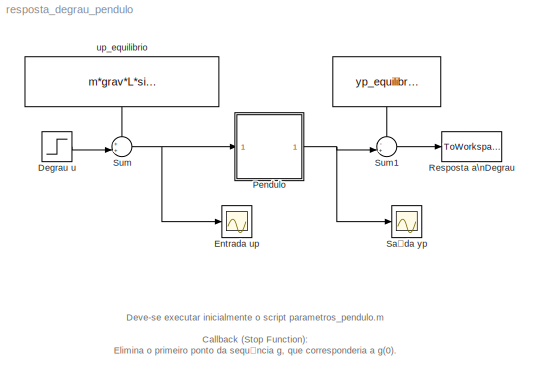
MODEL resposta_degrau_pendulo
KIND model
CONFIG StopFcn = disp('O primeiro ponto de g nao eh armazenado !')\ng = g(2:end);\nfigure,stem(g),title('g(n)'),xlabel('n')
BLOCK [Constant]  
  OutDataType = sfix(16)
  OutScaling = 2^0
  SID = 18
  Value = yp_equilibrio
BLOCK [Step] Degrau u
  SID = 1
  SampleTime = 0
  Time = 0
BLOCK [Scope] Entrada up
  DataFormat = StructureWithTime
  Floating = off
  NumInputPorts = 1
  Ports = [1]
  SID = 2
  SaveName = ScopeData1
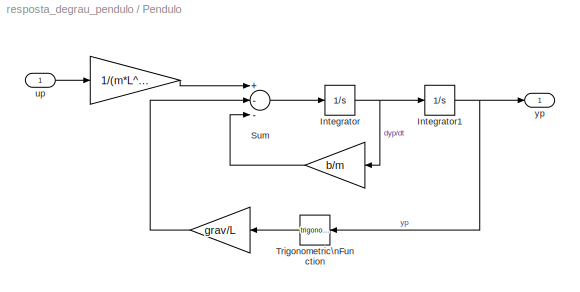
BLOCK [SubSystem] Pendulo
  FunctionWithSeparateData = off
  MaskCallbackString = ||||
  MaskEnableString = on,on,on,on,on
  MaskHideContents = off
  MaskIconFrame = on
  MaskIconOpaque = on
  MaskIconRotate = none
  MaskIconUnits = autoscale
  MaskPortRotate = default
  MaskPromptString = m (kg)|L (m)|grav (m/s^2)|b (Ns/(m*rad))|theta inicial (rad)
  MaskStyleString = edit,edit,edit,edit,edit
  MaskToolTipString = on,on,on,on,on
  MaskTunableValueString = on,on,on,on,on
  MaskValueString = m|L|grav|b|yp_equilibrio
  MaskVariables = m=@1;L=@2;grav=@3;b=@4;theta0=@5;
  MaskVisibilityString = on,on,on,on,on
  MinAlgLoopOccurrences = off
  Opaque = off
  Ports = [1, 1]
  PropExecContextOutsideSubsystem = off
  RTWSystemCode = Auto
  RequestExecContextInheritance = off
  SID = 3
BLOCK [Gain] Pendulo/ 
  Gain = b/m
  OutDataType = sfix(16)
  OutScaling = 2^0
  ParameterDataType = sfix(16)
  ParameterScaling = 2^0
  SID = 7
BLOCK [Gain] Pendulo/  
  Gain = grav/L
  OutDataType = sfix(16)
  OutScaling = 2^0
  ParameterDataType = sfix(16)
  ParameterScaling = 2^0
  SID = 6
BLOCK [Gain] Pendulo/   
  Gain = 1/(m*L^2)
  OutDataType = sfix(16)
  OutScaling = 2^0
  ParameterDataType = sfix(16)
  ParameterScaling = 2^0
  SID = 5
BLOCK [Integrator] Pendulo/Integrator
  Ports = [1, 1]
  SID = 8
BLOCK [Integrator] Pendulo/Integrator1
  InitialCondition = theta0
  Ports = [1, 1]
  SID = 9
BLOCK [Sum] Pendulo/Sum
  InputSameDT = off
  Inputs = +--
  OutDataType = sfix(16)
  OutDataTypeMode = Inherit via internal rule
  OutDataTypeStr = Inherit: Inherit via internal rule
  OutScaling = 2^0
  Ports = [3, 1]
  SID = 10
BLOCK [Trigonometry] Pendulo/Trigonometric\nFunction
  Ports = [1, 1]
  SID = 11
BLOCK [Inport] Pendulo/up
  IconDisplay = Port number
  OutDataType = sfix(16)
  OutScaling = 2^0
  SID = 4
BLOCK [Outport] Pendulo/yp
  IconDisplay = Port number
  SID = 12
BLOCK [ToWorkspace] Resposta a\nDegrau
  MaxDataPoints = inf
  Ports = [1]
  SID = 13
  SampleTime = T
  SaveFormat = Array
  VariableName = g
BLOCK [Scope] Saída yp
  DataFormat = StructureWithTime
  Floating = off
  NumInputPorts = 1
  Ports = [1]
  SID = 14
  TimeRange = 5
  YMax = 1
  YMin = 0.75
BLOCK [Sum] Sum
  IconShape = round
  InputSameDT = off
  Inputs = ++|
  OutDataType = sfix(16)
  OutDataTypeMode = Inherit via internal rule
  OutDataTypeStr = Inherit: Inherit via internal rule
  OutScaling = 2^0
  Ports = [2, 1]
  SID = 15
BLOCK [Sum] Sum1
  IconShape = round
  InputSameDT = off
  Inputs = -+|
  OutDataType = sfix(16)
  OutDataTypeMode = Inherit via internal rule
  OutDataTypeStr = Inherit: Inherit via internal rule
  OutScaling = 2^0
  Ports = [2, 1]
  SID = 17
BLOCK [Constant] up_equilibrio
  OutDataType = sfix(16)
  OutScaling = 2^0
  SID = 16
  Value = m*grav*L*sin(yp_equilibrio)
ANNOTATION (root): Deve-se executar inicialmente o script parametros_pendulo.m\n\nCallback (Stop Function):\nElimina o primeiro ponto da sequência g, que corresponderia a g(0).
LINE  :1 -> Sum1:1
LINE Degrau u:1 -> Sum:2
LINE Pendulo/   :1 -> Pendulo/Sum:1
LINE Pendulo/  :1 -> Pendulo/Sum:2
LINE Pendulo/ :1 -> Pendulo/Sum:3
NET Pendulo/Integrator1:1 -> Pendulo/Trigonometric\nFunction:1, Pendulo/yp:1
NET Pendulo/Integrator:1 -> Pendulo/ :1, Pendulo/Integrator1:1
LINE Pendulo/Sum:1 -> Pendulo/Integrator:1
LINE Pendulo/Trigonometric\nFunction:1 -> Pendulo/  :1
LINE Pendulo/up:1 -> Pendulo/   :1
NET Pendulo:1 -> Saída yp:1, Sum1:2
LINE Sum1:1 -> Resposta a\nDegrau:1
NET Sum:1 -> Entrada up:1, Pendulo:1
LINE up_equilibrio:1 -> Sum:1
note: NET lines group one-source signal fan-out (src -> all destinations, sorted); 1:1 wires keep LINE
